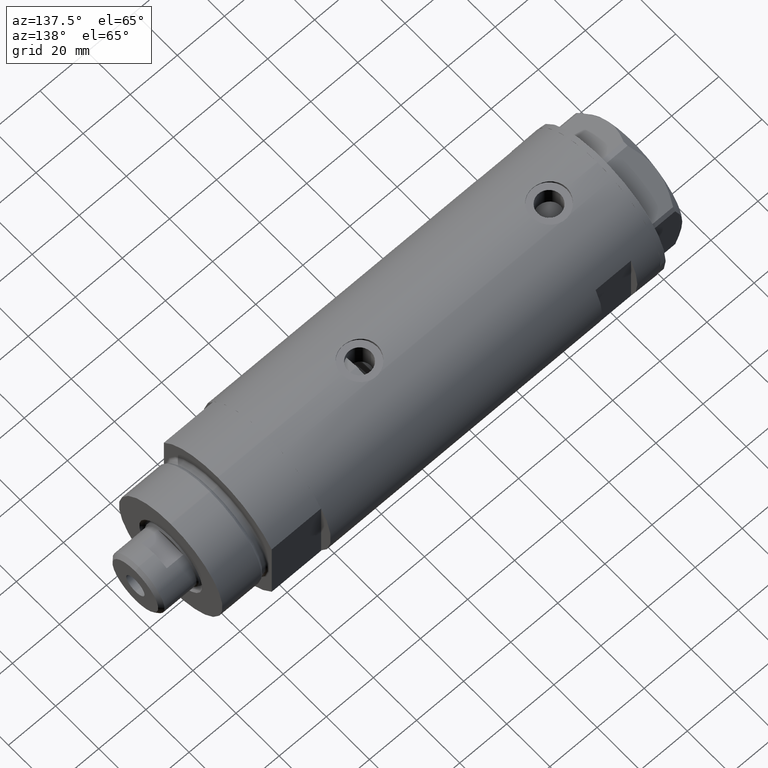
[diagram: clean part render]
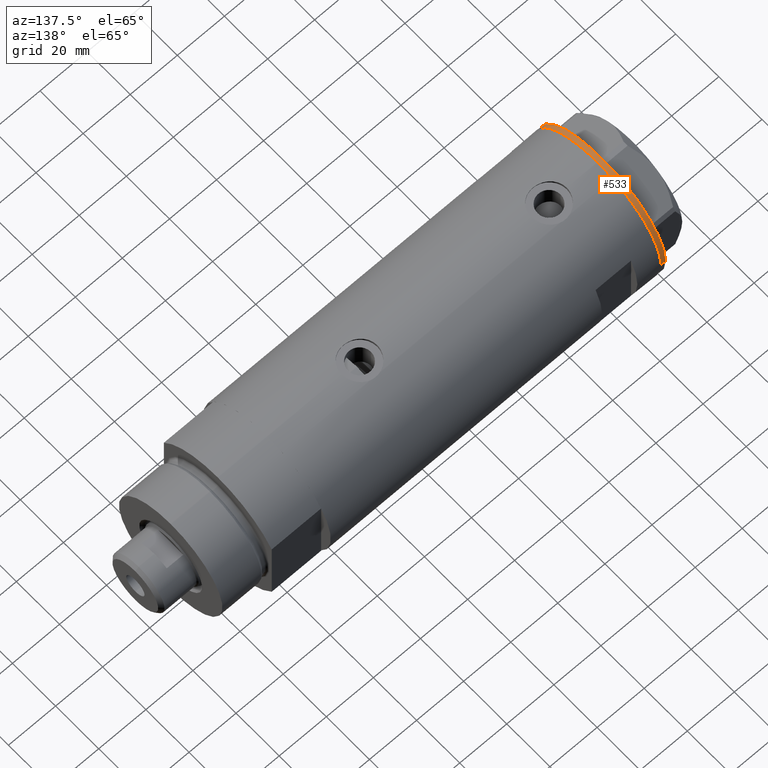
[diagram: same view with one face highlighted and labeled with its STEP entity id]
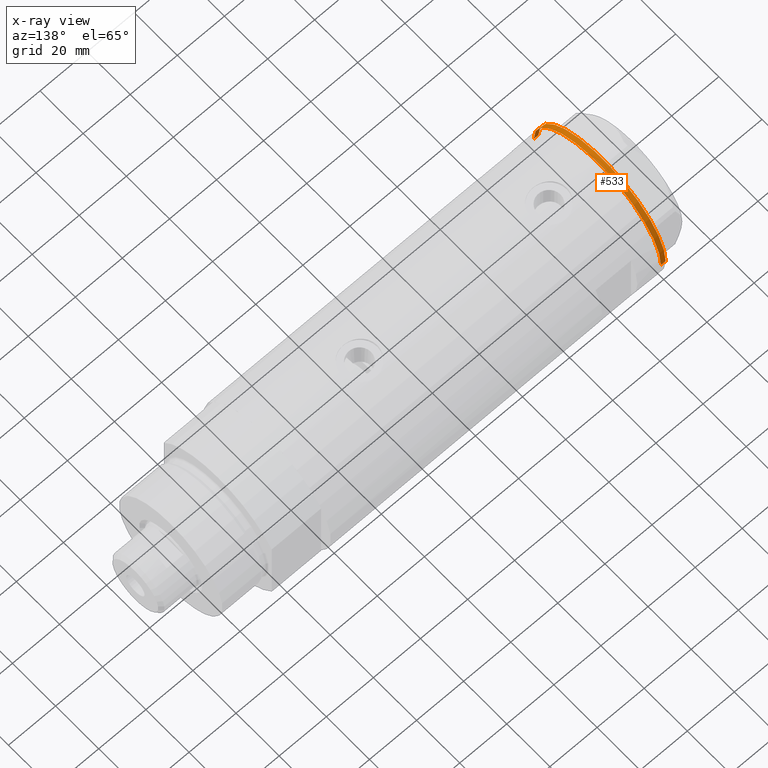
[diagram: x-ray of the same camera — body ghosted, the highlighted face saturated]
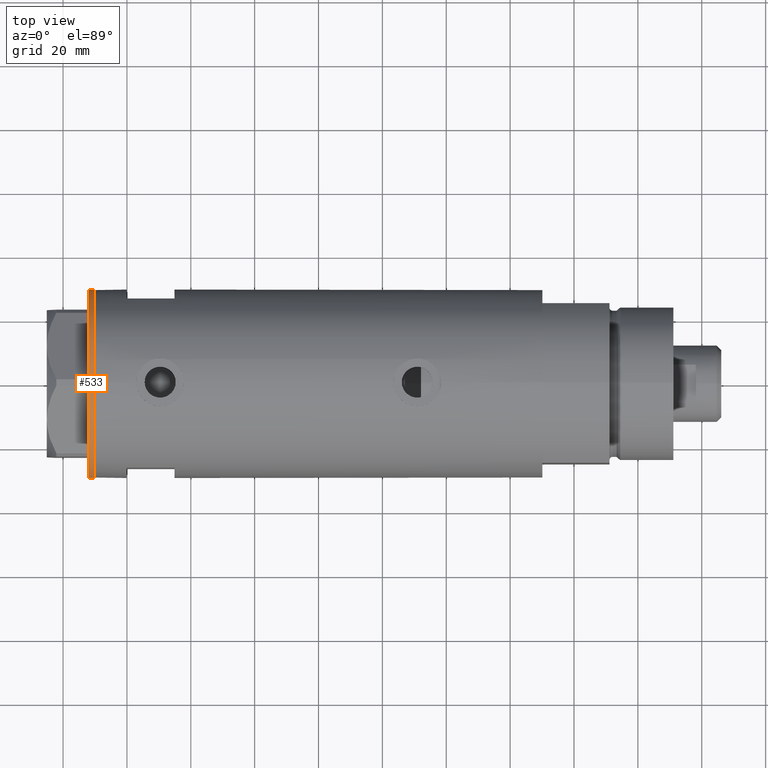
[diagram: same view with one face highlighted and labeled with its STEP entity id]
A machine part, auxiliary view. The second image highlights one B-rep face of the part: STEP entity #533.
The next image is the same camera in x-ray: the body ghosted, the highlighted face saturated — about 0% of this face is hidden behind the body in this view.
A second angle (top view) of the same face is appended — the face is thin or edge-on in the first view.
In plain terms, the highlighted cylindrical surface (partial cylindrical patch) has radius 29.5 mm, axis along (-1, -0, 0).
Its self-contained STEP definition (entity closure, byte-faithful):
#105 = ORIENTED_EDGE ( 'NONE', *, *, #1600, .F. ) ;
#181 = VECTOR ( 'NONE', #1043, 1000.000000000000000 ) ;
#197 = DIRECTION ( 'NONE',  ( 1.000000000000000000, 0.000000000000000000, 0.000000000000000000 ) ) ;
#533 = ADVANCED_FACE ( 'NONE', ( #2626 ), #4012, .T. ) ;
#585 = DIRECTION ( 'NONE',  ( -0.000000000000000000, -0.000000000000000000, 1.000000000000000000 ) ) ;
#593 = VERTEX_POINT ( 'NONE', #3147 ) ;
#601 = CARTESIAN_POINT ( 'NONE',  ( -29.50000000000000355, 3.612708057484692393E-15, 0.000000000000000000 ) ) ;
#609 = EDGE_CURVE ( 'NONE', #620, #593, #3787, .T. ) ;
#613 = CIRCLE ( 'NONE', #4219, 29.50000000000000355 ) ;
#620 = VERTEX_POINT ( 'NONE', #2806 ) ;
#744 = CARTESIAN_POINT ( 'NONE',  ( 29.50000000000000355, 0.000000000000000000, -2.000000000000000000 ) ) ;
#888 = EDGE_LOOP ( 'NONE', ( #105, #3978, #3374, #2383 ) ) ;
#1027 = CARTESIAN_POINT ( 'NONE',  ( 0.000000000000000000, 0.000000000000000000, -2.000000000000000000 ) ) ;
#1043 = DIRECTION ( 'NONE',  ( -0.000000000000000000, -0.000000000000000000, 1.000000000000000000 ) ) ;
#1267 = CIRCLE ( 'NONE', #2419, 29.50000000000000355 ) ;
#1409 = DIRECTION ( 'NONE',  ( 0.000000000000000000, 0.000000000000000000, -1.000000000000000000 ) ) ;
#1426 = CARTESIAN_POINT ( 'NONE',  ( 0.000000000000000000, 0.000000000000000000, 0.000000000000000000 ) ) ;
#1430 = VECTOR ( 'NONE', #2826, 1000.000000000000000 ) ;
#1458 = LINE ( 'NONE', #2374, #1430 ) ;
#1547 = VERTEX_POINT ( 'NONE', #601 ) ;
#1600 = EDGE_CURVE ( 'NONE', #2898, #1547, #1458, .T. ) ;
#1910 = AXIS2_PLACEMENT_3D ( 'NONE', #3605, #585, #197 ) ;
#2035 = DIRECTION ( 'NONE',  ( -1.000000000000000000, 0.000000000000000000, 0.000000000000000000 ) ) ;
#2283 = EDGE_CURVE ( 'NONE', #593, #1547, #613, .T. ) ;
#2374 = CARTESIAN_POINT ( 'NONE',  ( -29.50000000000000355, 3.612708057484692393E-15, -2.000000000000000000 ) ) ;
#2383 = ORIENTED_EDGE ( 'NONE', *, *, #2283, .T. ) ;
#2419 = AXIS2_PLACEMENT_3D ( 'NONE', #1027, #1409, #2035 ) ;
#2428 = DIRECTION ( 'NONE',  ( 0.000000000000000000, 0.000000000000000000, -1.000000000000000000 ) ) ;
#2626 = FACE_OUTER_BOUND ( 'NONE', #888, .T. ) ;
#2806 = CARTESIAN_POINT ( 'NONE',  ( 29.50000000000000355, 0.000000000000000000, -2.000000000000000000 ) ) ;
#2826 = DIRECTION ( 'NONE',  ( -0.000000000000000000, -0.000000000000000000, 1.000000000000000000 ) ) ;
#2898 = VERTEX_POINT ( 'NONE', #3546 ) ;
#3147 = CARTESIAN_POINT ( 'NONE',  ( 29.50000000000000355, 0.000000000000000000, 0.000000000000000000 ) ) ;
#3183 = EDGE_CURVE ( 'NONE', #620, #2898, #1267, .T. ) ;
#3374 = ORIENTED_EDGE ( 'NONE', *, *, #609, .T. ) ;
#3546 = CARTESIAN_POINT ( 'NONE',  ( -29.50000000000000355, 3.612708057484692393E-15, -2.000000000000000000 ) ) ;
#3605 = CARTESIAN_POINT ( 'NONE',  ( 0.000000000000000000, 0.000000000000000000, -2.000000000000000000 ) ) ;
#3787 = LINE ( 'NONE', #744, #181 ) ;
#3978 = ORIENTED_EDGE ( 'NONE', *, *, #3183, .F. ) ;
#4012 = CYLINDRICAL_SURFACE ( 'NONE', #1910, 29.50000000000000355 ) ;
#4178 = DIRECTION ( 'NONE',  ( -1.000000000000000000, 0.000000000000000000, 0.000000000000000000 ) ) ;
#4219 = AXIS2_PLACEMENT_3D ( 'NONE', #1426, #2428, #4178 ) ;